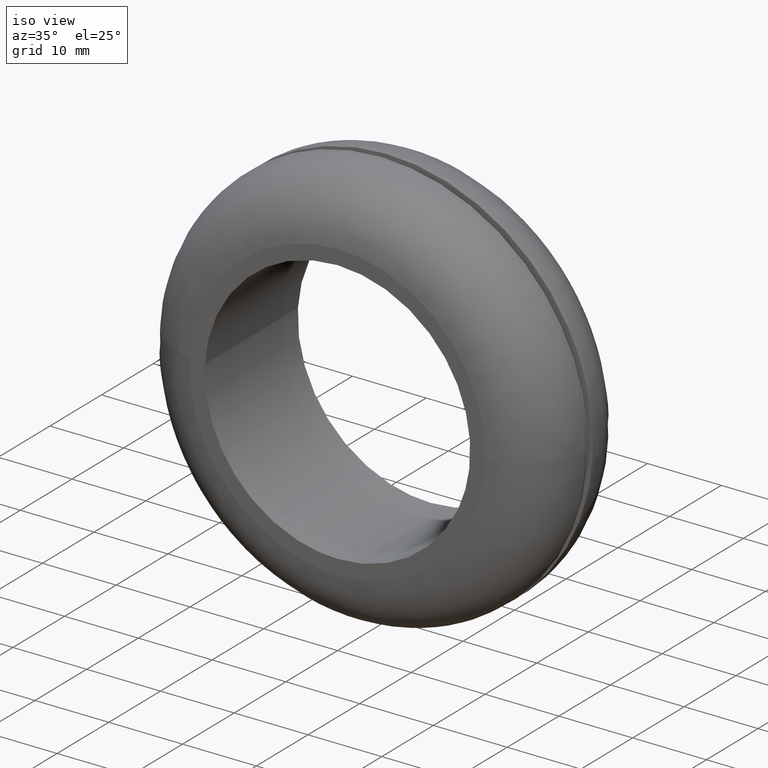
[diagram: clean part render]
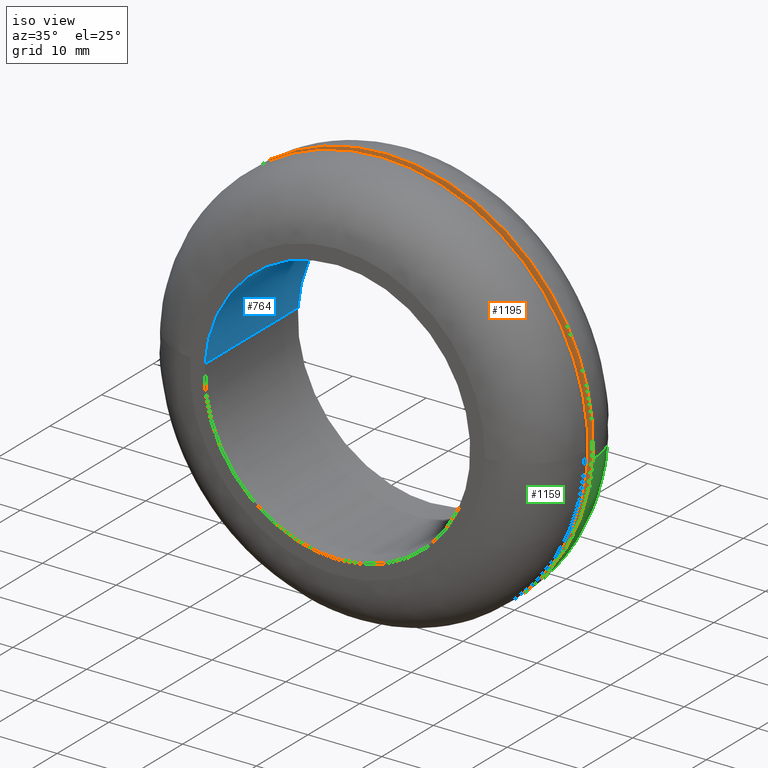
[diagram: same view with three faces highlighted in distinct colors, each labeled with its STEP entity id]
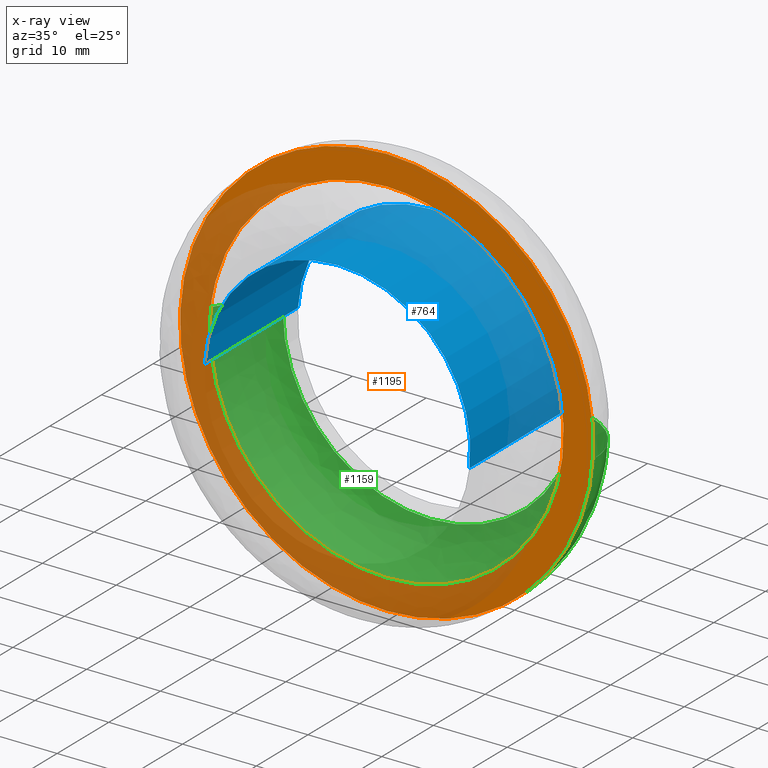
[diagram: x-ray of the same camera — body ghosted, the three highlighted faces saturated]
A machine part, iso view with three faces highlighted in distinct colors.
The next image is the same camera in x-ray (body ghosted, the three faces saturated) — at least one of them is partly hidden behind the body in this view.
Their STEP definitions:

[orange] entity #1195 — the highlighted face is a freeform B-spline surface patch.
#301=CARTESIAN_POINT('',(23.832230875501359,9.500000000000000,-2.832802763419730));
#302=VERTEX_POINT('',#301);
#308=CARTESIAN_POINT('',(0.0,9.500000000000000,24.0));
#309=VERTEX_POINT('',#308);
#310=CARTESIAN_POINT('',(23.832230875501359,9.500000000000000,-2.832802763419730));
#311=CARTESIAN_POINT('',(23.999999999999996,9.500000000000000,-1.421369337738873));
#312=CARTESIAN_POINT('',(24.0,9.500000000000000,-4.286122E-016));
#313=CARTESIAN_POINT('',(23.999999999999996,9.500000000000000,23.999999999999996));
#314=CARTESIAN_POINT('',(0.0,9.500000000000000,24.0));
#322=(BOUNDED_CURVE()B_SPLINE_CURVE(2,(#310,#311,#312,#313,#314),.UNSPECIFIED.,.F.,.U.)B_SPLINE_CURVE_WITH_KNOTS((3,2,3),(0.229562607318126,0.250000000000000,0.500000000000000),.UNSPECIFIED.)CURVE()GEOMETRIC_REPRESENTATION_ITEM()RATIONAL_B_SPLINE_CURVE((0.956027016446394,0.976056105093006,1.0,0.707106781186548,1.0))REPRESENTATION_ITEM(''));
#323=EDGE_CURVE('',#302,#309,#322,.T.);
#325=CARTESIAN_POINT('',(-23.955236601031661,9.500000000000000,1.465141422538261));
#326=VERTEX_POINT('',#325);
#327=CARTESIAN_POINT('',(0.0,9.500000000000000,24.0));
#328=CARTESIAN_POINT('',(-22.576967819867498,9.500000000000002,24.000000000000004));
#329=CARTESIAN_POINT('',(-23.955236601031661,9.500000000000000,1.465141422538261));
#337=(BOUNDED_CURVE()B_SPLINE_CURVE(2,(#327,#328,#329),.UNSPECIFIED.,.F.,.U.)B_SPLINE_CURVE_WITH_KNOTS((3,3),(0.500000000000000,0.739333131699197),.UNSPECIFIED.)CURVE()GEOMETRIC_REPRESENTATION_ITEM()RATIONAL_B_SPLINE_CURVE((1.0,0.719603794751673,0.976072404852569))REPRESENTATION_ITEM(''));
#338=EDGE_CURVE('',#309,#326,#337,.T.);
#412=CARTESIAN_POINT('',(0.0,9.500000000000000,-24.0));
#413=VERTEX_POINT('',#412);
#414=CARTESIAN_POINT('',(-23.955236601031661,9.500000000000000,1.465141422538261));
#415=CARTESIAN_POINT('',(-23.999999999999993,9.500000000000000,0.733254523035143));
#416=CARTESIAN_POINT('',(-24.0,9.500000000000000,-4.286122E-016));
#417=CARTESIAN_POINT('',(-23.999999999999996,9.500000000000000,-23.999999999999996));
#418=CARTESIAN_POINT('',(0.0,9.500000000000000,-24.0));
#426=(BOUNDED_CURVE()B_SPLINE_CURVE(2,(#414,#415,#416,#417,#418),.UNSPECIFIED.,.F.,.U.)B_SPLINE_CURVE_WITH_KNOTS((3,2,3),(0.739333131699197,0.750000000000000,1.0),.UNSPECIFIED.)CURVE()GEOMETRIC_REPRESENTATION_ITEM()RATIONAL_B_SPLINE_CURVE((0.976072404852569,0.987502986434874,1.0,0.707106781186548,1.0))REPRESENTATION_ITEM(''));
#427=EDGE_CURVE('',#326,#413,#426,.T.);
#429=CARTESIAN_POINT('',(0.0,9.500000000000000,-24.0));
#430=CARTESIAN_POINT('',(21.316205617996250,9.499999999999998,-24.0));
#431=CARTESIAN_POINT('',(23.832230875501359,9.500000000000000,-2.832802763419730));
#439=(BOUNDED_CURVE()B_SPLINE_CURVE(2,(#429,#430,#431),.UNSPECIFIED.,.F.,.U.)B_SPLINE_CURVE_WITH_KNOTS((3,3),(0.0,0.229562607318126),.UNSPECIFIED.)CURVE()GEOMETRIC_REPRESENTATION_ITEM()RATIONAL_B_SPLINE_CURVE((1.0,0.731050676093542,0.956027016446394))REPRESENTATION_ITEM(''));
#440=EDGE_CURVE('',#413,#302,#439,.T.);
#496=CARTESIAN_POINT('',(-18.916524704206171,9.500000000000000,20.643766446924250));
#497=VERTEX_POINT('',#496);
#503=CARTESIAN_POINT('',(0.0,9.500000000000000,28.0));
#504=VERTEX_POINT('',#503);
#505=CARTESIAN_POINT('',(0.0,9.500000000000000,28.0));
#506=CARTESIAN_POINT('',(-10.888603626030772,9.500000000000000,27.999999999999996));
#507=CARTESIAN_POINT('',(-18.916524704206207,9.500000000000000,20.643766446924278));
#515=(BOUNDED_CURVE()B_SPLINE_CURVE(2,(#505,#506,#507),.UNSPECIFIED.,.F.,.U.)B_SPLINE_CURVE_WITH_KNOTS((3,3),(0.500000000000000,0.618415200974131),.UNSPECIFIED.)CURVE()GEOMETRIC_REPRESENTATION_ITEM()RATIONAL_B_SPLINE_CURVE((1.0,0.861267962520980,0.853959781838990))REPRESENTATION_ITEM(''));
#516=EDGE_CURVE('',#504,#497,#515,.T.);
#518=CARTESIAN_POINT('',(24.498502278124882,9.500000000000000,13.558148329646160));
#519=VERTEX_POINT('',#518);
#520=CARTESIAN_POINT('',(24.498502278124885,9.500000000000000,13.558148329646158));
#521=CARTESIAN_POINT('',(16.505982373092507,9.499999999999998,28.000000000000007));
#522=CARTESIAN_POINT('',(0.0,9.500000000000000,28.0));
#530=(BOUNDED_CURVE()B_SPLINE_CURVE(2,(#520,#521,#522),.UNSPECIFIED.,.F.,.U.)B_SPLINE_CURVE_WITH_KNOTS((3,3),(0.332484262755645,0.500000000000000),.UNSPECIFIED.)CURVE()GEOMETRIC_REPRESENTATION_ITEM()RATIONAL_B_SPLINE_CURVE((0.870495158345373,0.803743106066369,1.0))REPRESENTATION_ITEM(''));
#531=EDGE_CURVE('',#519,#504,#530,.T.);
#581=CARTESIAN_POINT('',(0.0,9.500000000000000,-28.0));
#582=VERTEX_POINT('',#581);
#583=CARTESIAN_POINT('',(0.0,9.500000000000000,-28.0));
#584=CARTESIAN_POINT('',(28.000000000000004,9.500000000000000,-28.000000000000004));
#585=CARTESIAN_POINT('',(28.0,9.500000000000000,-4.286122E-016));
#586=CARTESIAN_POINT('',(28.000000000000007,9.500000000000002,7.231218734944354));
#587=CARTESIAN_POINT('',(24.498502278124885,9.500000000000000,13.558148329646158));
#595=(BOUNDED_CURVE()B_SPLINE_CURVE(2,(#583,#584,#585,#586,#587),.UNSPECIFIED.,.F.,.U.)B_SPLINE_CURVE_WITH_KNOTS((3,2,3),(0.0,0.250000000000000,0.332484262755645),.UNSPECIFIED.)CURVE()GEOMETRIC_REPRESENTATION_ITEM()RATIONAL_B_SPLINE_CURVE((1.0,0.707106781186547,1.0,0.903363675120178,0.870495158345373))REPRESENTATION_ITEM(''));
#596=EDGE_CURVE('',#582,#519,#595,.T.);
#598=CARTESIAN_POINT('',(-18.916524704206207,9.500000000000000,20.643766446924278));
#599=CARTESIAN_POINT('',(-27.999999999999996,9.500000000000000,12.320295762700807));
#600=CARTESIAN_POINT('',(-28.0,9.500000000000000,-4.286122E-016));
#601=CARTESIAN_POINT('',(-28.000000000000004,9.500000000000000,-28.000000000000004));
#602=CARTESIAN_POINT('',(0.0,9.500000000000000,-28.0));
#610=(BOUNDED_CURVE()B_SPLINE_CURVE(2,(#598,#599,#600,#601,#602),.UNSPECIFIED.,.F.,.U.)B_SPLINE_CURVE_WITH_KNOTS((3,2,3),(0.618415200974131,0.750000000000000,1.0),.UNSPECIFIED.)CURVE()GEOMETRIC_REPRESENTATION_ITEM()RATIONAL_B_SPLINE_CURVE((0.853959781838990,0.845838818665568,1.0,0.707106781186547,1.0))REPRESENTATION_ITEM(''));
#611=EDGE_CURVE('',#497,#582,#610,.T.);
#1178=CARTESIAN_POINT('',(-30.784454981961250,9.500000000000000,-30.797199891461140));
#1179=CARTESIAN_POINT('',(-30.784454981961250,9.500000000000000,30.797201393498181));
#1180=CARTESIAN_POINT('',(30.790120665707590,9.500000000000000,-30.797199891461140));
#1181=CARTESIAN_POINT('',(30.790120665707590,9.500000000000000,30.797201393498181));
#1182=B_SPLINE_SURFACE_WITH_KNOTS('',1,1,((#1178,#1180),(#1179,#1181)),.UNSPECIFIED.,.F.,.F.,.U.,(2,2),(2,2),(0.0,61.594401284959318),(0.0,61.574575647668851),.UNSPECIFIED.);
#1183=ORIENTED_EDGE('',*,*,#531,.T.);
#1184=ORIENTED_EDGE('',*,*,#516,.T.);
#1185=ORIENTED_EDGE('',*,*,#611,.T.);
#1186=ORIENTED_EDGE('',*,*,#596,.T.);
#1187=EDGE_LOOP('',(#1183,#1184,#1185,#1186));
#1188=FACE_OUTER_BOUND('',#1187,.T.);
#1189=ORIENTED_EDGE('',*,*,#338,.F.);
#1190=ORIENTED_EDGE('',*,*,#323,.F.);
#1191=ORIENTED_EDGE('',*,*,#440,.F.);
#1192=ORIENTED_EDGE('',*,*,#427,.F.);
#1193=EDGE_LOOP('',(#1189,#1190,#1191,#1192));
#1194=FACE_BOUND('',#1193,.T.);
#1195=ADVANCED_FACE('',(#1188,#1194),#1182,.F.);

[blue] entity #764 — the highlighted face is a freeform B-spline surface patch.
#662=CARTESIAN_POINT('',(17.874171474545992,18.450000000000003,-2.124616223821653));
#663=CARTESIAN_POINT('',(17.934977078074905,18.450000000000010,-1.613065115483598));
#664=CARTESIAN_POINT('',(17.966426371593599,18.449999999999999,-1.098873711627426));
#665=CARTESIAN_POINT('',(19.065300083221029,18.450000000000010,16.867552659966176));
#666=CARTESIAN_POINT('',(1.098873711627426,18.449999999999999,17.966426371593599));
#667=CARTESIAN_POINT('',(-16.867552659966176,18.450000000000010,19.065300083221029));
#668=CARTESIAN_POINT('',(-17.966426371593599,18.449999999999999,1.098873711627425));
#669=CARTESIAN_POINT('',(17.874171474545992,-0.461250000000007,-2.124616223821653));
#670=CARTESIAN_POINT('',(17.934977078074905,-0.461250000000007,-1.613065115483598));
#671=CARTESIAN_POINT('',(17.966426371593599,-0.461250000000007,-1.098873711627426));
#672=CARTESIAN_POINT('',(19.065300083221029,-0.461250000000007,16.867552659966176));
#673=CARTESIAN_POINT('',(1.098873711627426,-0.461250000000007,17.966426371593599));
#674=CARTESIAN_POINT('',(-16.867552659966176,-0.461250000000007,19.065300083221029));
#675=CARTESIAN_POINT('',(-17.966426371593599,-0.461250000000007,1.098873711627425));
#683=(BOUNDED_SURFACE()B_SPLINE_SURFACE(2,1,((#662,#669),(#663,#670),(#664,#671),(#665,#672),(#666,#673),(#667,#674),(#668,#675)),.UNSPECIFIED.,.F.,.F.,.U.)B_SPLINE_SURFACE_WITH_KNOTS((3,2,2,3),(2,2),(0.0,1.192935059634515,31.016311550497349,60.839688041360183),(0.0,18.911250000000010),.UNSPECIFIED.)GEOMETRIC_REPRESENTATION_ITEM()RATIONAL_B_SPLINE_SURFACE(((0.977505800795127,0.977505800795127),(0.988284271247462,0.988284271247462),(1.0,1.0),(0.707106781186548,0.707106781186548),(1.0,1.0),(0.707106781186548,0.707106781186548),(1.0,1.0)))REPRESENTATION_ITEM('')SURFACE());
#684=CARTESIAN_POINT('',(17.874173591016429,18.000000000000089,-2.124598418028458));
#685=VERTEX_POINT('',#684);
#686=CARTESIAN_POINT('',(0.0,18.0,18.0));
#687=VERTEX_POINT('',#686);
#688=CARTESIAN_POINT('',(17.874173591016433,18.000000000000089,-2.124598418028459));
#689=CARTESIAN_POINT('',(18.0,18.0,-1.066025156718830));
#690=CARTESIAN_POINT('',(18.0,18.0,-4.286122E-016));
#691=CARTESIAN_POINT('',(18.000000000000007,18.000000000000007,18.000000000000007));
#692=CARTESIAN_POINT('',(0.0,18.0,18.0));
#700=(BOUNDED_CURVE()B_SPLINE_CURVE(2,(#688,#689,#690,#691,#692),.UNSPECIFIED.,.F.,.U.)B_SPLINE_CURVE_WITH_KNOTS((3,2,3),(0.229562641872376,0.250000000000000,0.500000000000000),.UNSPECIFIED.)CURVE()GEOMETRIC_REPRESENTATION_ITEM()RATIONAL_B_SPLINE_CURVE((0.956027084174235,0.976056145575827,1.0,0.707106781186547,1.0))REPRESENTATION_ITEM(''));
#701=EDGE_CURVE('',#685,#687,#700,.T.);
#702=ORIENTED_EDGE('',*,*,#701,.F.);
#703=CARTESIAN_POINT('',(17.874173565500872,-5.770390E-015,-2.124598632691822));
#704=VERTEX_POINT('',#703);
#705=CARTESIAN_POINT('',(17.874173591016429,18.000000000000089,-2.124598418028458));
#706=CARTESIAN_POINT('',(17.874173565500872,-5.770390E-015,-2.124598632691822));
#707=QUASI_UNIFORM_CURVE('',1,(#705,#706),.UNSPECIFIED.,.F.,.U.);
#708=EDGE_CURVE('',#685,#704,#707,.T.);
#709=ORIENTED_EDGE('',*,*,#708,.T.);
#710=CARTESIAN_POINT('',(0.0,-3.306437E-015,18.0));
#711=VERTEX_POINT('',#710);
#712=CARTESIAN_POINT('',(17.874173565500875,-5.770390E-015,-2.124598632691822));
#713=CARTESIAN_POINT('',(18.0,-3.306437E-015,-1.066025265185177));
#714=CARTESIAN_POINT('',(18.0,-3.306437E-015,-4.286122E-016));
#715=CARTESIAN_POINT('',(18.000000000000007,-3.306437E-015,18.000000000000007));
#716=CARTESIAN_POINT('',(0.0,-3.306437E-015,18.0));
#724=(BOUNDED_CURVE()B_SPLINE_CURVE(2,(#712,#713,#714,#715,#716),.UNSPECIFIED.,.F.,.U.)B_SPLINE_CURVE_WITH_KNOTS((3,2,3),(0.229562639842698,0.250000000000000,0.500000000000000),.UNSPECIFIED.)CURVE()GEOMETRIC_REPRESENTATION_ITEM()RATIONAL_B_SPLINE_CURVE((0.956027080195977,0.976056143197912,1.0,0.707106781186547,1.0))REPRESENTATION_ITEM(''));
#725=EDGE_CURVE('',#704,#711,#724,.T.);
#726=ORIENTED_EDGE('',*,*,#725,.T.);
#727=CARTESIAN_POINT('',(-17.966427366884538,-2.652419E-015,1.098857438522586));
#728=VERTEX_POINT('',#727);
#729=CARTESIAN_POINT('',(0.0,-3.306437E-015,18.0));
#730=CARTESIAN_POINT('',(-16.932724569782611,-3.306437E-015,18.0));
#731=CARTESIAN_POINT('',(-17.966427366884538,-2.652419E-015,1.098857438522586));
#739=(BOUNDED_CURVE()B_SPLINE_CURVE(2,(#729,#730,#731),.UNSPECIFIED.,.F.,.U.)B_SPLINE_CURVE_WITH_KNOTS((3,3),(0.500000000000000,0.739333118526377),.UNSPECIFIED.)CURVE()GEOMETRIC_REPRESENTATION_ITEM()RATIONAL_B_SPLINE_CURVE((1.0,0.719603810184591,0.976072376620669))REPRESENTATION_ITEM(''));
#740=EDGE_CURVE('',#711,#728,#739,.T.);
#741=ORIENTED_EDGE('',*,*,#740,.T.);
#742=CARTESIAN_POINT('',(-17.966427379012210,17.999999999999918,1.098857240230970));
#743=VERTEX_POINT('',#742);
#744=CARTESIAN_POINT('',(-17.966427379012210,17.999999999999918,1.098857240230970));
#745=CARTESIAN_POINT('',(-17.966427366884538,-2.652419E-015,1.098857438522586));
#746=QUASI_UNIFORM_CURVE('',1,(#744,#745),.UNSPECIFIED.,.F.,.U.);
#747=EDGE_CURVE('',#743,#728,#746,.T.);
#748=ORIENTED_EDGE('',*,*,#747,.F.);
#749=CARTESIAN_POINT('',(0.0,18.0,18.0));
#750=CARTESIAN_POINT('',(-16.932724757014672,18.0,18.0));
#751=CARTESIAN_POINT('',(-17.966427379012213,17.999999999999918,1.098857240230970));
#759=(BOUNDED_CURVE()B_SPLINE_CURVE(2,(#749,#750,#751),.UNSPECIFIED.,.F.,.U.)B_SPLINE_CURVE_WITH_KNOTS((3,3),(0.500000000000000,0.739333120430740),.UNSPECIFIED.)CURVE()GEOMETRIC_REPRESENTATION_ITEM()RATIONAL_B_SPLINE_CURVE((1.0,0.719603807953492,0.976072380702086))REPRESENTATION_ITEM(''));
#760=EDGE_CURVE('',#687,#743,#759,.T.);
#761=ORIENTED_EDGE('',*,*,#760,.F.);
#762=EDGE_LOOP('',(#702,#709,#726,#741,#748,#761));
#763=FACE_OUTER_BOUND('',#762,.T.);
#764=ADVANCED_FACE('',(#763),#683,.F.);

[green] entity #1159 — the highlighted face is a freeform B-spline surface patch.
#563=CARTESIAN_POINT('',(27.931839311277209,9.999988632645632,-1.952524695885787));
#564=VERTEX_POINT('',#563);
#614=CARTESIAN_POINT('',(-27.997789473912182,9.999988724574578,0.351830318831164));
#615=VERTEX_POINT('',#614);
#629=CARTESIAN_POINT('',(0.0,10.0,-28.0));
#630=VERTEX_POINT('',#629);
#631=CARTESIAN_POINT('',(-27.997789473912178,9.999988724574578,0.351830318831164));
#632=CARTESIAN_POINT('',(-27.999999999977870,9.999988759553625,0.175922103708228));
#633=CARTESIAN_POINT('',(-27.999999999977931,9.999988794974991,-2.697971E-013));
#634=CARTESIAN_POINT('',(-27.999999999989040,9.999994432687702,-28.000000000000128));
#635=CARTESIAN_POINT('',(0.0,10.0,-28.0));
#643=(BOUNDED_CURVE()B_SPLINE_CURVE(2,(#631,#632,#633,#634,#635),.UNSPECIFIED.,.F.,.U.)B_SPLINE_CURVE_WITH_KNOTS((3,2,3),(0.747784414000057,0.750000000000000,1.0),.UNSPECIFIED.)CURVE()GEOMETRIC_REPRESENTATION_ITEM()RATIONAL_B_SPLINE_CURVE((0.994854567414644,0.997404279539675,1.0,0.707106781186547,1.0))REPRESENTATION_ITEM(''));
#644=EDGE_CURVE('',#615,#630,#643,.T.);
#646=CARTESIAN_POINT('',(0.0,10.0,-28.0));
#647=CARTESIAN_POINT('',(26.111037672339410,9.999994316322818,-27.999999999999407));
#648=CARTESIAN_POINT('',(27.931839311277212,9.999988632645632,-1.952524695885788));
#656=(BOUNDED_CURVE()B_SPLINE_CURVE(2,(#646,#647,#648),.UNSPECIFIED.,.F.,.U.)B_SPLINE_CURVE_WITH_KNOTS((3,3),(0.0,0.237833725622559),.UNSPECIFIED.)CURVE()GEOMETRIC_REPRESENTATION_ITEM()RATIONAL_B_SPLINE_CURVE((1.0,0.721360458240052,0.972879959060353))REPRESENTATION_ITEM(''));
#657=EDGE_CURVE('',#630,#564,#656,.T.);
#1035=CARTESIAN_POINT('',(19.951313477026670,18.0,-1.394665031562556));
#1036=VERTEX_POINT('',#1035);
#1037=CARTESIAN_POINT('',(19.951313477026677,18.0,-1.394665031562556));
#1038=CARTESIAN_POINT('',(27.931850428987570,17.999999999557520,-1.952528662693935));
#1039=CARTESIAN_POINT('',(27.931839311277209,9.999988632645632,-1.952524695885787));
#1047=(BOUNDED_CURVE()B_SPLINE_CURVE(2,(#1037,#1038,#1039),.UNSPECIFIED.,.F.,.U.)B_SPLINE_CURVE_WITH_KNOTS((3,3),(-1.734750791600929,-0.265247731871690),.UNSPECIFIED.)CURVE()GEOMETRIC_REPRESENTATION_ITEM()RATIONAL_B_SPLINE_CURVE((0.869031711855350,0.614497960802621,0.869032223356742))REPRESENTATION_ITEM(''));
#1048=EDGE_CURVE('',#1036,#564,#1047,.T.);
#1067=CARTESIAN_POINT('',(-19.998420884129541,18.0,0.251320797672036));
#1068=VERTEX_POINT('',#1067);
#1082=CARTESIAN_POINT('',(-19.998420884129533,18.000000000000007,0.251320797672036));
#1083=CARTESIAN_POINT('',(-27.997800630329927,17.999999999893454,0.351839859471933));
#1084=CARTESIAN_POINT('',(-27.997789473912182,9.999988724574578,0.351830318831164));
#1092=(BOUNDED_CURVE()B_SPLINE_CURVE(2,(#1082,#1083,#1084),.UNSPECIFIED.,.F.,.U.)B_SPLINE_CURVE_WITH_KNOTS((3,3),(-1.734750791644562,-0.265247743812055),.UNSPECIFIED.)CURVE()GEOMETRIC_REPRESENTATION_ITEM()RATIONAL_B_SPLINE_CURVE((0.889029723571537,0.628638686710008,0.889030242596456))REPRESENTATION_ITEM(''));
#1093=EDGE_CURVE('',#1068,#615,#1092,.T.);
#1100=CARTESIAN_POINT('',(-19.442166540443480,17.980634826789895,0.244330331461835));
#1101=CARTESIAN_POINT('',(-19.686496871905316,17.980634826789899,-19.197836208981645));
#1102=CARTESIAN_POINT('',(-0.244330331461836,17.980634826789895,-19.442166540443480));
#1103=CARTESIAN_POINT('',(18.115946520129736,17.980634826789892,-19.672900729431564));
#1104=CARTESIAN_POINT('',(19.396369421626172,17.980634826789895,-1.355872544532653));
#1105=CARTESIAN_POINT('',(-28.618051241081414,18.620299706625691,0.359643969255172));
#1106=CARTESIAN_POINT('',(-28.977695210336577,18.620299706625694,-28.258407271826236));
#1107=CARTESIAN_POINT('',(-0.359643969255174,18.620299706625691,-28.618051241081414));
#1108=CARTESIAN_POINT('',(26.665911163516721,18.620299706625691,-28.957682260587106));
#1109=CARTESIAN_POINT('',(28.550639808807059,18.620299706625687,-1.995787345772105));
#1110=CARTESIAN_POINT('',(-27.978424865996317,9.443691296079329,0.351605764052518));
#1111=CARTESIAN_POINT('',(-28.330030630048832,9.443691296079328,-27.626819101943795));
#1112=CARTESIAN_POINT('',(-0.351605764052519,9.443691296079329,-27.978424865996317));
#1113=CARTESIAN_POINT('',(26.069916001156532,9.443691296079328,-28.310464978768266));
#1114=CARTESIAN_POINT('',(27.912520109690306,9.443691296079329,-1.951180596882635));
#1122=(BOUNDED_SURFACE()B_SPLINE_SURFACE(2,2,((#1100,#1105,#1110),(#1101,#1106,#1111),(#1102,#1107,#1112),(#1103,#1108,#1113),(#1104,#1109,#1114)),.UNSPECIFIED.,.F.,.F.,.U.)B_SPLINE_SURFACE_WITH_KNOTS((3,2,3),(3,3),(0.0,46.359832510816133,90.865271721199605),(0.0,14.579007301381440),.UNSPECIFIED.)GEOMETRIC_REPRESENTATION_ITEM()RATIONAL_B_SPLINE_SURFACE(((0.916342173042551,0.601326223754876,0.916342719035661),(0.647951764445604,0.425201850522372,0.647952150521035),(0.916342173042551,0.601326223754876,0.916342719035661),(0.658687380789482,0.432246825451673,0.658687773261620),(0.895729789662305,0.587799871890620,0.895730323373737)))REPRESENTATION_ITEM('')SURFACE());
#1123=ORIENTED_EDGE('',*,*,#657,.F.);
#1124=ORIENTED_EDGE('',*,*,#644,.F.);
#1125=ORIENTED_EDGE('',*,*,#1093,.F.);
#1126=CARTESIAN_POINT('',(0.0,18.0,-20.0));
#1127=VERTEX_POINT('',#1126);
#1128=CARTESIAN_POINT('',(-19.998420884129541,18.0,0.251320797672036));
#1129=CARTESIAN_POINT('',(-20.0,18.0,0.125665359842116));
#1130=CARTESIAN_POINT('',(-20.0,18.0,-4.286122E-016));
#1131=CARTESIAN_POINT('',(-19.999999999999996,18.000000000000007,-19.999999999999996));
#1132=CARTESIAN_POINT('',(0.0,18.0,-20.0));
#1140=(BOUNDED_CURVE()B_SPLINE_CURVE(2,(#1128,#1129,#1130,#1131,#1132),.UNSPECIFIED.,.F.,.U.)B_SPLINE_CURVE_WITH_KNOTS((3,2,3),(0.747784295921652,0.750000000000000,1.0),.UNSPECIFIED.)CURVE()GEOMETRIC_REPRESENTATION_ITEM()RATIONAL_B_SPLINE_CURVE((0.994854295643837,0.997404141202218,1.0,0.707106781186548,1.0))REPRESENTATION_ITEM(''));
#1141=EDGE_CURVE('',#1068,#1127,#1140,.T.);
#1142=ORIENTED_EDGE('',*,*,#1141,.T.);
#1143=CARTESIAN_POINT('',(0.0,18.0,-20.0));
#1144=CARTESIAN_POINT('',(18.650736945260622,18.000000000000004,-19.999999999999996));
#1145=CARTESIAN_POINT('',(19.951313477026673,18.000000000000004,-1.394665031562556));
#1153=(BOUNDED_CURVE()B_SPLINE_CURVE(2,(#1143,#1144,#1145),.UNSPECIFIED.,.F.,.U.)B_SPLINE_CURVE_WITH_KNOTS((3,3),(0.0,0.237833686534474),.UNSPECIFIED.)CURVE()GEOMETRIC_REPRESENTATION_ITEM()RATIONAL_B_SPLINE_CURVE((1.0,0.721360504034593,0.972879876385670))REPRESENTATION_ITEM(''));
#1154=EDGE_CURVE('',#1127,#1036,#1153,.T.);
#1155=ORIENTED_EDGE('',*,*,#1154,.T.);
#1156=ORIENTED_EDGE('',*,*,#1048,.T.);
#1157=EDGE_LOOP('',(#1123,#1124,#1125,#1142,#1155,#1156));
#1158=FACE_OUTER_BOUND('',#1157,.T.);
#1159=ADVANCED_FACE('',(#1158),#1122,.T.);